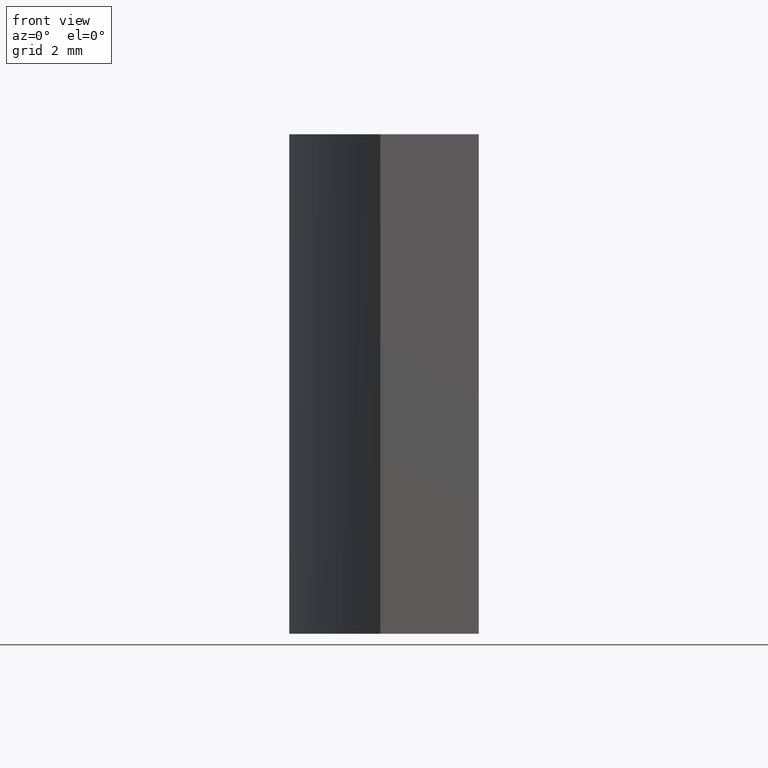
[diagram: clean part render]
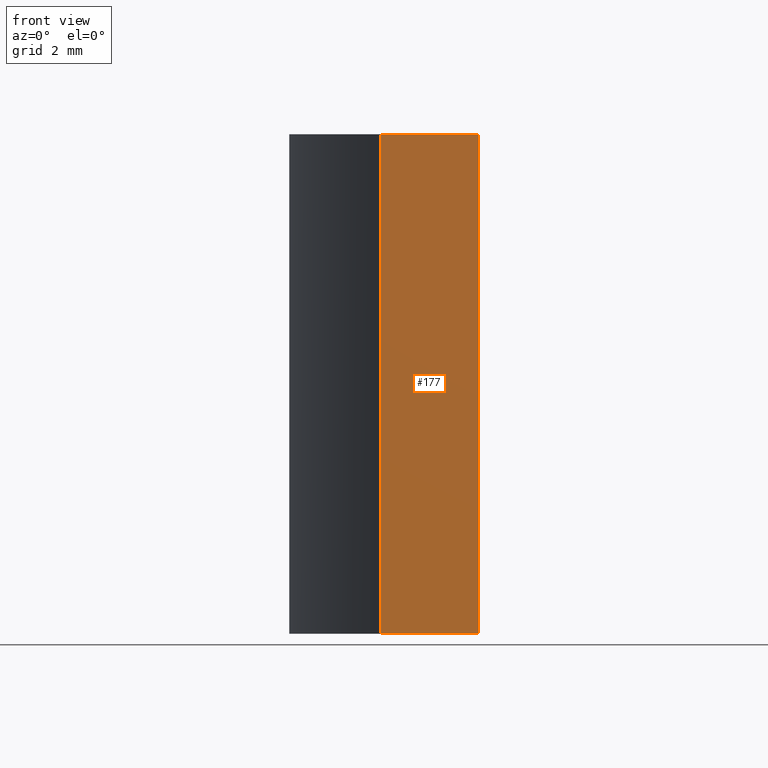
[diagram: same view with one face highlighted and labeled with its STEP entity id]
A machine part, front view. The second image highlights one B-rep face of the part: STEP entity #177.
In plain terms, the highlighted planar face has unit normal (0, 1, 0).
Its self-contained STEP definition (entity closure, byte-faithful):
#2 = CARTESIAN_POINT ( 'NONE',  ( -3.964441844015321958, -5.000000000000000000, 10.00000000000000000 ) ) ;
#14 = VERTEX_POINT ( 'NONE', #247 ) ;
#16 = EDGE_LOOP ( 'NONE', ( #113, #91, #181, #96 ) ) ;
#22 = DIRECTION ( 'NONE',  ( 0.000000000000000000, 1.000000000000000000, 0.000000000000000000 ) ) ;
#23 = AXIS2_PLACEMENT_3D ( 'NONE', #128, #22, #101 ) ;
#35 = VECTOR ( 'NONE', #40, 1000.000000000000000 ) ;
#38 = CARTESIAN_POINT ( 'NONE',  ( -5.934441844015322154, -5.000000000000000000, 10.00000000000000000 ) ) ;
#40 = DIRECTION ( 'NONE',  ( -0.000000000000000000, -0.000000000000000000, -1.000000000000000000 ) ) ;
#50 = VECTOR ( 'NONE', #231, 1000.000000000000000 ) ;
#61 = CARTESIAN_POINT ( 'NONE',  ( -5.934441844015322154, -5.000000000000000000, 10.00000000000000000 ) ) ;
#78 = CARTESIAN_POINT ( 'NONE',  ( -3.964441844015321958, -5.000000000000000000, 10.00000000000000000 ) ) ;
#84 = EDGE_CURVE ( 'NONE', #271, #249, #163, .T. ) ;
#91 = ORIENTED_EDGE ( 'NONE', *, *, #129, .F. ) ;
#96 = ORIENTED_EDGE ( 'NONE', *, *, #265, .T. ) ;
#101 = DIRECTION ( 'NONE',  ( 0.000000000000000000, -0.000000000000000000, 1.000000000000000000 ) ) ;
#104 = LINE ( 'NONE', #123, #195 ) ;
#113 = ORIENTED_EDGE ( 'NONE', *, *, #266, .T. ) ;
#123 = CARTESIAN_POINT ( 'NONE',  ( -5.934441844015322154, -5.000000000000000000, 0.000000000000000000 ) ) ;
#128 = CARTESIAN_POINT ( 'NONE',  ( -5.934441844015322154, -5.000000000000000000, 10.00000000000000000 ) ) ;
#129 = EDGE_CURVE ( 'NONE', #249, #221, #209, .T. ) ;
#162 = CARTESIAN_POINT ( 'NONE',  ( -5.934441844015322154, -5.000000000000000000, 10.00000000000000000 ) ) ;
#163 = LINE ( 'NONE', #162, #50 ) ;
#164 = LINE ( 'NONE', #38, #35 ) ;
#171 = PLANE ( 'NONE',  #23 ) ;
#172 = CARTESIAN_POINT ( 'NONE',  ( -3.964441844015321958, -5.000000000000000000, 0.000000000000000000 ) ) ;
#177 = ADVANCED_FACE ( 'NONE', ( #208 ), #171, .F. ) ;
#181 = ORIENTED_EDGE ( 'NONE', *, *, #84, .F. ) ;
#195 = VECTOR ( 'NONE', #210, 1000.000000000000000 ) ;
#208 = FACE_OUTER_BOUND ( 'NONE', #16, .T. ) ;
#209 = LINE ( 'NONE', #2, #246 ) ;
#210 = DIRECTION ( 'NONE',  ( 1.000000000000000000, 0.000000000000000000, 0.000000000000000000 ) ) ;
#221 = VERTEX_POINT ( 'NONE', #172 ) ;
#229 = DIRECTION ( 'NONE',  ( -0.000000000000000000, -0.000000000000000000, -1.000000000000000000 ) ) ;
#231 = DIRECTION ( 'NONE',  ( 1.000000000000000000, 0.000000000000000000, 0.000000000000000000 ) ) ;
#246 = VECTOR ( 'NONE', #229, 1000.000000000000000 ) ;
#247 = CARTESIAN_POINT ( 'NONE',  ( -5.934441844015322154, -5.000000000000000000, 0.000000000000000000 ) ) ;
#249 = VERTEX_POINT ( 'NONE', #78 ) ;
#265 = EDGE_CURVE ( 'NONE', #271, #14, #164, .T. ) ;
#266 = EDGE_CURVE ( 'NONE', #14, #221, #104, .T. ) ;
#271 = VERTEX_POINT ( 'NONE', #61 ) ;